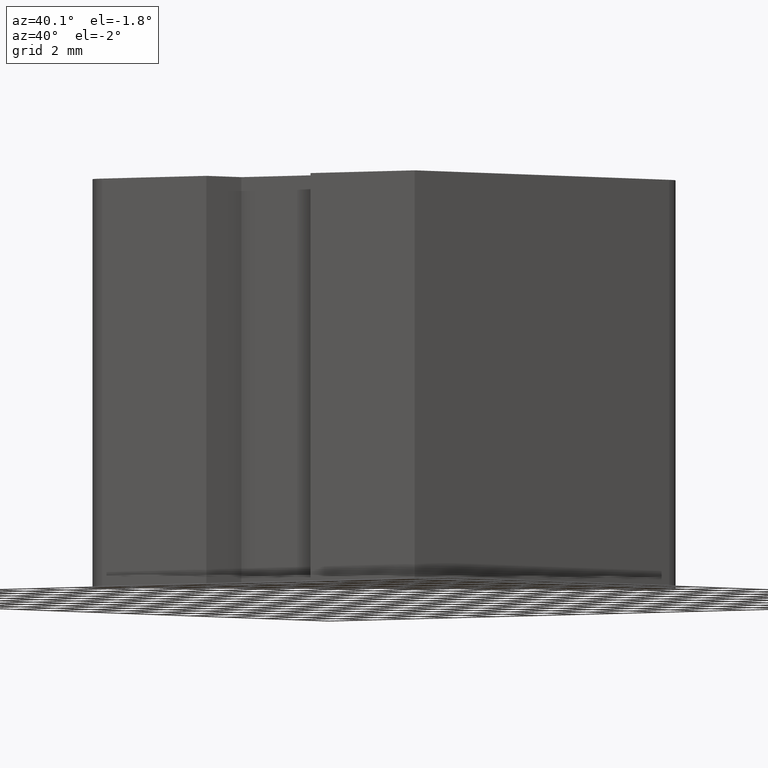
[diagram: clean part render]
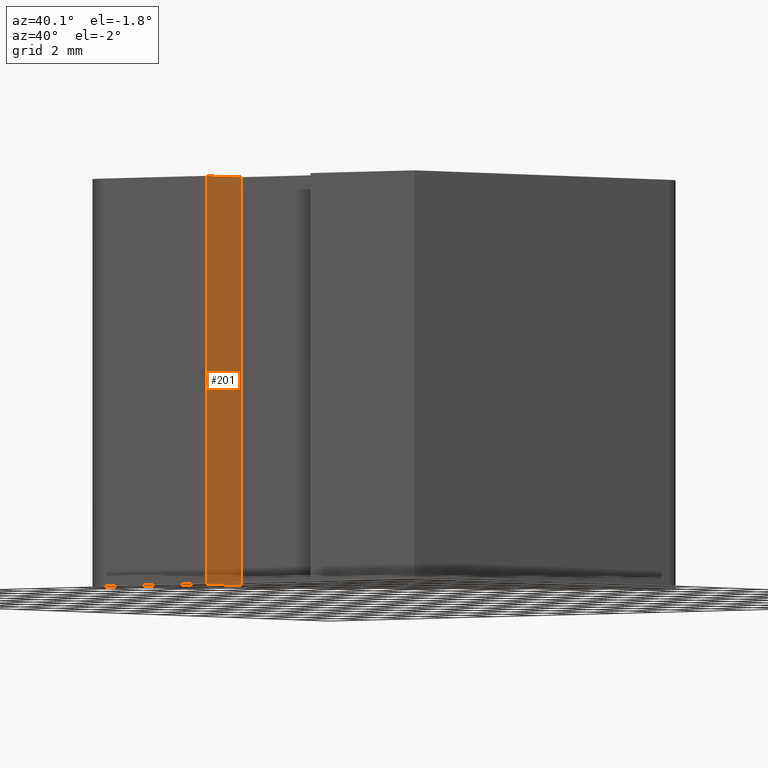
[diagram: same view with one face highlighted and labeled with its STEP entity id]
A machine part, auxiliary view. The second image highlights one B-rep face of the part: STEP entity #201.
In plain terms, the highlighted planar face has unit normal (1, 0, 0).
Its self-contained STEP definition (entity closure, byte-faithful):
#21=FACE_OUTER_BOUND('',#32,.T.);
#32=EDGE_LOOP('',(#152,#153,#154,#155));
#48=LINE('',#314,#71);
#55=LINE('',#331,#78);
#56=LINE('',#334,#79);
#57=LINE('',#335,#80);
#71=VECTOR('',#255,10.);
#78=VECTOR('',#270,10.);
#79=VECTOR('',#273,10.);
#80=VECTOR('',#274,10.);
#94=VERTEX_POINT('',#311);
#95=VERTEX_POINT('',#313);
#101=VERTEX_POINT('',#329);
#102=VERTEX_POINT('',#333);
#112=EDGE_CURVE('',#95,#94,#48,.T.);
#121=EDGE_CURVE('',#101,#94,#55,.T.);
#122=EDGE_CURVE('',#101,#102,#56,.T.);
#123=EDGE_CURVE('',#102,#95,#57,.T.);
#152=ORIENTED_EDGE('',*,*,#122,.T.);
#153=ORIENTED_EDGE('',*,*,#123,.T.);
#154=ORIENTED_EDGE('',*,*,#112,.T.);
#155=ORIENTED_EDGE('',*,*,#121,.F.);
#192=PLANE('',#237);
#201=ADVANCED_FACE('',(#21),#192,.T.);
#237=AXIS2_PLACEMENT_3D('',#332,#271,#272);
#255=DIRECTION('',(0.,1.,0.));
#270=DIRECTION('',(0.,0.,-1.));
#271=DIRECTION('center_axis',(1.,0.,0.));
#272=DIRECTION('ref_axis',(0.,0.,-1.));
#273=DIRECTION('',(0.,-1.,0.));
#274=DIRECTION('',(0.,0.,-1.));
#311=CARTESIAN_POINT('',(-10.,2.,-7.5));
#313=CARTESIAN_POINT('',(-10.,2.21533117346659E-15,-7.5));
#314=CARTESIAN_POINT('',(-10.,2.,-7.5));
#329=CARTESIAN_POINT('',(-10.,2.,7.5));
#331=CARTESIAN_POINT('',(-10.,2.,0.));
#332=CARTESIAN_POINT('Origin',(-10.,2.,0.));
#333=CARTESIAN_POINT('',(-10.,2.21533117346659E-15,7.5));
#334=CARTESIAN_POINT('',(-10.,2.,7.5));
#335=CARTESIAN_POINT('',(-10.,2.21533117346659E-15,0.));